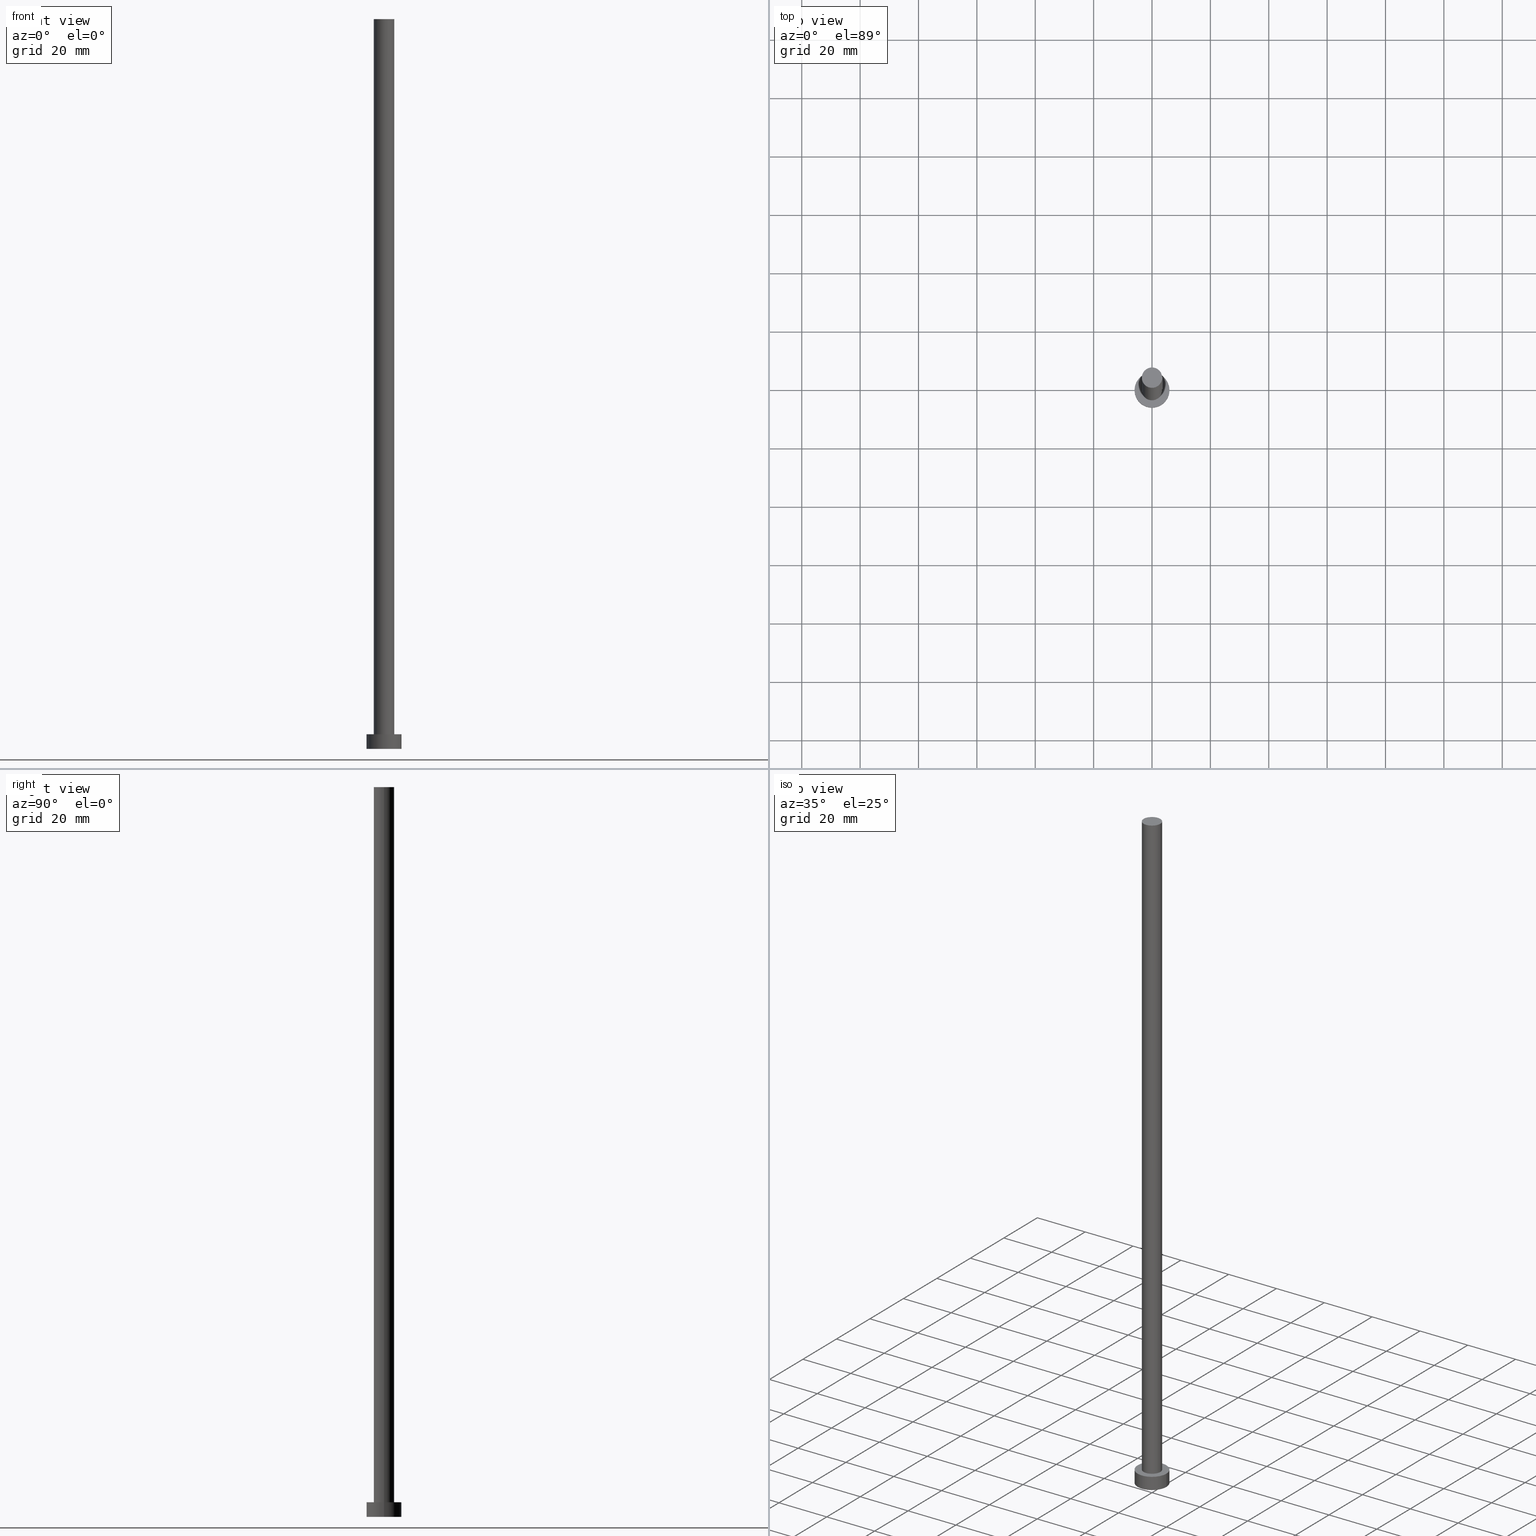
[diagram: canonical four-view strip — front | top / right | iso, engineering-drawing reading convention]
A machine part, canonical four-view strip (front | top / right | iso — engineering-drawing reading convention). The complete STEP part file that produces these views, byte-faithful:
ISO-10303-21;
HEADER;
FILE_DESCRIPTION (( 'STEP AP203' ),
    '1' );
FILE_NAME ('9ffb.STEP',
    '2023-02-13T13:35:58',
    ( '' ),
    ( '' ),
    'SwSTEP 2.0',
    'SolidWorks 2019',
    '' );
FILE_SCHEMA (( 'CONFIG_CONTROL_DESIGN' ));
ENDSEC;

DATA;
#1 = CARTESIAN_POINT ( 'NONE',  ( 0.000000000000000000, 0.000000000000000000, 5.000000000000000000 ) ) ;
#2 = AXIS2_PLACEMENT_3D ( 'NONE', #196, #21, #82 ) ;
#3 = CARTESIAN_POINT ( 'NONE',  ( 0.000000000000000000, 0.000000000000000000, 5.000000000000000000 ) ) ;
#4 = FACE_OUTER_BOUND ( 'NONE', #33, .T. ) ;
#5 = AXIS2_PLACEMENT_3D ( 'NONE', #92, #171, #212 ) ;
#6 = EDGE_CURVE ( 'NONE', #248, #48, #94, .T. ) ;
#7 = EDGE_CURVE ( 'NONE', #90, #169, #73, .T. ) ;
#8 = DIRECTION ( 'NONE',  ( 0.000000000000000000, 0.000000000000000000, 1.000000000000000000 ) ) ;
#9 = AXIS2_PLACEMENT_3D ( 'NONE', #44, #42, #236 ) ;
#10 = PRODUCT_DEFINITION ( 'NEZN�M�', '', #100, #41 ) ;
#11 = CYLINDRICAL_SURFACE ( 'NONE', #185, 3.500000000000000000 ) ;
#12 = ORIENTED_EDGE ( 'NONE', *, *, #66, .T. ) ;
#13 = APPROVAL_DATE_TIME ( #112, #176 ) ;
#14 = EDGE_CURVE ( 'NONE', #187, #169, #18, .T. ) ;
#15 = CYLINDRICAL_SURFACE ( 'NONE', #5, 3.500000000000000000 ) ;
#16 = ORIENTED_EDGE ( 'NONE', *, *, #14, .T. ) ;
#17 = CALENDAR_DATE ( 2023, 13, 2 ) ;
#18 = LINE ( 'NONE', #153, #36 ) ;
#19 = ORIENTED_EDGE ( 'NONE', *, *, #119, .T. ) ;
#20 = CARTESIAN_POINT ( 'NONE',  ( 6.000000000000000888, 7.347880794884120722E-16, 0.000000000000000000 ) ) ;
#21 = DIRECTION ( 'NONE',  ( 0.000000000000000000, 0.000000000000000000, 1.000000000000000000 ) ) ;
#22 = LOCAL_TIME ( 14, 35, 58.00000000000000000, #74 ) ;
#23 = LINE ( 'NONE', #105, #253 ) ;
#24 = AXIS2_PLACEMENT_3D ( 'NONE', #81, #34, #211 ) ;
#25 = APPROVAL_PERSON_ORGANIZATION ( #120, #216, #255 ) ;
#26 = APPROVAL_ROLE ( '' ) ;
#27 = ORIENTED_EDGE ( 'NONE', *, *, #145, .T. ) ;
#28 = CARTESIAN_POINT ( 'NONE',  ( 0.000000000000000000, 0.000000000000000000, 5.000000000000000000 ) ) ;
#29 = DIRECTION ( 'NONE',  ( 1.000000000000000000, 0.000000000000000000, 0.000000000000000000 ) ) ;
#30 = ORIENTED_EDGE ( 'NONE', *, *, #62, .T. ) ;
#31 = DATE_AND_TIME ( #225, #202 ) ;
#32 = DIRECTION ( 'NONE',  ( -0.000000000000000000, -0.000000000000000000, -1.000000000000000000 ) ) ;
#33 = EDGE_LOOP ( 'NONE', ( #150, #220 ) ) ;
#34 = DIRECTION ( 'NONE',  ( -0.000000000000000000, -0.000000000000000000, -1.000000000000000000 ) ) ;
#35 = COORDINATED_UNIVERSAL_TIME_OFFSET ( 1, 0, .AHEAD. ) ;
#36 = VECTOR ( 'NONE', #32, 1000.000000000000000 ) ;
#37 = PERSON_AND_ORGANIZATION ( #189, #95 ) ;
#38 =( LENGTH_UNIT ( ) NAMED_UNIT ( * ) SI_UNIT ( .MILLI., .METRE. ) );
#39 = APPROVAL ( #53, 'NEUR�EN�' ) ;
#40 = ADVANCED_FACE ( 'NONE', ( #223 ), #203, .T. ) ;
#41 = DESIGN_CONTEXT ( 'detailed design', #135, 'design' ) ;
#42 = DIRECTION ( 'NONE',  ( 0.000000000000000000, 0.000000000000000000, 1.000000000000000000 ) ) ;
#43 = PLANE ( 'NONE',  #129 ) ;
#44 = CARTESIAN_POINT ( 'NONE',  ( 0.000000000000000000, 0.000000000000000000, 5.000000000000000000 ) ) ;
#45 = CC_DESIGN_APPROVAL ( #39, ( #10 ) ) ;
#46 = CC_DESIGN_APPROVAL ( #176, ( #140 ) ) ;
#47 = ORIENTED_EDGE ( 'NONE', *, *, #7, .T. ) ;
#48 = VERTEX_POINT ( 'NONE', #72 ) ;
#49 = DATE_AND_TIME ( #69, #22 ) ;
#50 = EDGE_LOOP ( 'NONE', ( #88, #201 ) ) ;
#51 = DIRECTION ( 'NONE',  ( 0.000000000000000000, 0.000000000000000000, 1.000000000000000000 ) ) ;
#52 = CIRCLE ( 'NONE', #9, 6.000000000000000888 ) ;
#53 = APPROVAL_STATUS ( 'not_yet_approved' ) ;
#54 = ORIENTED_EDGE ( 'NONE', *, *, #6, .F. ) ;
#55 = EDGE_LOOP ( 'NONE', ( #219, #68 ) ) ;
#56 = COORDINATED_UNIVERSAL_TIME_OFFSET ( 1, 0, .AHEAD. ) ;
#57 = CARTESIAN_POINT ( 'NONE',  ( -3.500000000000000000, 0.000000000000000000, 250.0000000000000000 ) ) ;
#58 = PERSON_AND_ORGANIZATION ( #189, #95 ) ;
#59 = APPROVAL_DATE_TIME ( #31, #216 ) ;
#60 = CC_DESIGN_DATE_AND_TIME_ASSIGNMENT ( #49, #132, ( #140 ) ) ;
#61 = DIRECTION ( 'NONE',  ( 1.000000000000000000, 0.000000000000000000, 0.000000000000000000 ) ) ;
#62 = EDGE_CURVE ( 'NONE', #248, #79, #198, .T. ) ;
#63 = AXIS2_PLACEMENT_3D ( 'NONE', #114, #76, #191 ) ;
#64 = ADVANCED_BREP_SHAPE_REPRESENTATION ( '9ffb', ( #156, #63 ), #226 ) ;
#65 = DIRECTION ( 'NONE',  ( -0.000000000000000000, -0.000000000000000000, -1.000000000000000000 ) ) ;
#66 = EDGE_CURVE ( 'NONE', #190, #48, #165, .T. ) ;
#67 = VECTOR ( 'NONE', #115, 1000.000000000000000 ) ;
#68 = ORIENTED_EDGE ( 'NONE', *, *, #66, .F. ) ;
#69 = CALENDAR_DATE ( 2023, 13, 2 ) ;
#70 = CARTESIAN_POINT ( 'NONE',  ( -6.000000000000000888, 0.000000000000000000, 0.000000000000000000 ) ) ;
#71 = DIRECTION ( 'NONE',  ( 1.000000000000000000, 0.000000000000000000, 0.000000000000000000 ) ) ;
#72 = CARTESIAN_POINT ( 'NONE',  ( -3.500000000000000000, 0.000000000000000000, 5.000000000000000000 ) ) ;
#73 = CIRCLE ( 'NONE', #134, 6.000000000000000888 ) ;
#74 = COORDINATED_UNIVERSAL_TIME_OFFSET ( 1, 0, .AHEAD. ) ;
#75 = APPROVAL_ROLE ( '' ) ;
#76 = DIRECTION ( 'NONE',  ( 0.000000000000000000, 0.000000000000000000, 1.000000000000000000 ) ) ;
#77 = APPROVAL_PERSON_ORGANIZATION ( #122, #39, #75 ) ;
#78 =( NAMED_UNIT ( * ) PLANE_ANGLE_UNIT ( ) SI_UNIT ( $, .RADIAN. ) );
#79 = VERTEX_POINT ( 'NONE', #80 ) ;
#80 = CARTESIAN_POINT ( 'NONE',  ( 3.500000000000000000, 4.286263797015736595E-16, 250.0000000000000000 ) ) ;
#81 = CARTESIAN_POINT ( 'NONE',  ( 0.000000000000000000, 0.000000000000000000, 5.000000000000000000 ) ) ;
#82 = DIRECTION ( 'NONE',  ( 1.000000000000000000, 0.000000000000000000, 0.000000000000000000 ) ) ;
#83 = PRODUCT_RELATED_PRODUCT_CATEGORY ( 'detail', '', ( #240 ) ) ;
#84 = CIRCLE ( 'NONE', #108, 6.000000000000000888 ) ;
#85 = ADVANCED_FACE ( 'NONE', ( #160 ), #161, .T. ) ;
#86 = VECTOR ( 'NONE', #175, 1000.000000000000000 ) ;
#87 = PERSON_AND_ORGANIZATION ( #189, #95 ) ;
#88 = ORIENTED_EDGE ( 'NONE', *, *, #208, .T. ) ;
#89 = SHAPE_DEFINITION_REPRESENTATION ( #98, #64 ) ;
#90 = VERTEX_POINT ( 'NONE', #70 ) ;
#91 = EDGE_LOOP ( 'NONE', ( #30, #133 ) ) ;
#92 = CARTESIAN_POINT ( 'NONE',  ( 0.000000000000000000, 0.000000000000000000, 250.0000000000000000 ) ) ;
#93 = CALENDAR_DATE ( 2023, 13, 2 ) ;
#94 = LINE ( 'NONE', #254, #67 ) ;
#95 = ORGANIZATION ( 'NEUR�EN�', 'NEUR�EN�', '' ) ;
#96 = CC_DESIGN_SECURITY_CLASSIFICATION ( #140, ( #100 ) ) ;
#97 = COORDINATED_UNIVERSAL_TIME_OFFSET ( 1, 0, .AHEAD. ) ;
#98 = PRODUCT_DEFINITION_SHAPE ( 'NONE', 'NONE',  #10 ) ;
#99 = ORIENTED_EDGE ( 'NONE', *, *, #158, .F. ) ;
#100 = PRODUCT_DEFINITION_FORMATION_WITH_SPECIFIED_SOURCE ( 'LIBOVOLN�', '', #240, .NOT_KNOWN. ) ;
#101 = DIRECTION ( 'NONE',  ( 1.000000000000000000, 0.000000000000000000, -0.000000000000000000 ) ) ;
#102 = FACE_OUTER_BOUND ( 'NONE', #50, .T. ) ;
#103 = CIRCLE ( 'NONE', #148, 3.500000000000000000 ) ;
#104 = CC_DESIGN_PERSON_AND_ORGANIZATION_ASSIGNMENT ( #37, #167, ( #100 ) ) ;
#105 = CARTESIAN_POINT ( 'NONE',  ( 3.500000000000000000, 4.286263797015736595E-16, 250.0000000000000000 ) ) ;
#106 = DIRECTION ( 'NONE',  ( 1.000000000000000000, 0.000000000000000000, 0.000000000000000000 ) ) ;
#107 = CARTESIAN_POINT ( 'NONE',  ( 0.000000000000000000, 0.000000000000000000, 0.000000000000000000 ) ) ;
#108 = AXIS2_PLACEMENT_3D ( 'NONE', #107, #8, #182 ) ;
#109 = EDGE_LOOP ( 'NONE', ( #244, #116, #184, #47 ) ) ;
#110 = CLOSED_SHELL ( 'NONE', ( #237, #40, #210, #136, #251, #229, #85 ) ) ;
#111 = ORIENTED_EDGE ( 'NONE', *, *, #6, .T. ) ;
#112 = DATE_AND_TIME ( #138, #149 ) ;
#113 = CC_DESIGN_PERSON_AND_ORGANIZATION_ASSIGNMENT ( #154, #221, ( #100 ) ) ;
#114 = CARTESIAN_POINT ( 'NONE',  ( 0.000000000000000000, 0.000000000000000000, 0.000000000000000000 ) ) ;
#115 = DIRECTION ( 'NONE',  ( -0.000000000000000000, -0.000000000000000000, -1.000000000000000000 ) ) ;
#116 = ORIENTED_EDGE ( 'NONE', *, *, #208, .F. ) ;
#117 = APPLICATION_PROTOCOL_DEFINITION ( 'international standard', 'config_control_design', 1994, #186 ) ;
#118 = AXIS2_PLACEMENT_3D ( 'NONE', #215, #233, #106 ) ;
#119 = EDGE_CURVE ( 'NONE', #169, #90, #84, .T. ) ;
#120 = PERSON_AND_ORGANIZATION ( #189, #95 ) ;
#121 = CARTESIAN_POINT ( 'NONE',  ( -6.000000000000000888, 0.000000000000000000, 5.000000000000000000 ) ) ;
#122 = PERSON_AND_ORGANIZATION ( #189, #95 ) ;
#123 = CARTESIAN_POINT ( 'NONE',  ( 6.000000000000000888, 7.347880794884120722E-16, 5.000000000000000000 ) ) ;
#124 = DIRECTION ( 'NONE',  ( 0.000000000000000000, 0.000000000000000000, 1.000000000000000000 ) ) ;
#125 = FACE_OUTER_BOUND ( 'NONE', #109, .T. ) ;
#126 = DIRECTION ( 'NONE',  ( 1.000000000000000000, 0.000000000000000000, -0.000000000000000000 ) ) ;
#127 = CARTESIAN_POINT ( 'NONE',  ( 0.000000000000000000, 0.000000000000000000, 5.000000000000000000 ) ) ;
#128 = AXIS2_PLACEMENT_3D ( 'NONE', #1, #230, #195 ) ;
#129 = AXIS2_PLACEMENT_3D ( 'NONE', #127, #197, #181 ) ;
#130 = EDGE_LOOP ( 'NONE', ( #199, #166, #111, #177 ) ) ;
#131 = CC_DESIGN_PERSON_AND_ORGANIZATION_ASSIGNMENT ( #58, #228, ( #10 ) ) ;
#132 = DATE_TIME_ROLE ( 'classification_date' ) ;
#133 = ORIENTED_EDGE ( 'NONE', *, *, #235, .T. ) ;
#134 = AXIS2_PLACEMENT_3D ( 'NONE', #245, #51, #71 ) ;
#135 = APPLICATION_CONTEXT ( 'configuration controlled 3d designs of mechanical parts and assemblies' ) ;
#136 = ADVANCED_FACE ( 'NONE', ( #241, #102 ), #43, .T. ) ;
#137 = DIRECTION ( 'NONE',  ( -0.000000000000000000, -0.000000000000000000, -1.000000000000000000 ) ) ;
#138 = CALENDAR_DATE ( 2023, 13, 2 ) ;
#139 = APPROVAL_DATE_TIME ( #194, #39 ) ;
#140 = SECURITY_CLASSIFICATION ( '', '', #252 ) ;
#141 = DATE_AND_TIME ( #93, #192 ) ;
#142 = AXIS2_PLACEMENT_3D ( 'NONE', #3, #232, #61 ) ;
#143 = UNCERTAINTY_MEASURE_WITH_UNIT (LENGTH_MEASURE( 1.000000000000000082E-05 ), #38, 'distance_accuracy_value', 'NONE');
#144 = CARTESIAN_POINT ( 'NONE',  ( 0.000000000000000000, 0.000000000000000000, 250.0000000000000000 ) ) ;
#145 = EDGE_CURVE ( 'NONE', #79, #190, #23, .T. ) ;
#146 = CYLINDRICAL_SURFACE ( 'NONE', #24, 6.000000000000000888 ) ;
#147 = CIRCLE ( 'NONE', #128, 6.000000000000000888 ) ;
#148 = AXIS2_PLACEMENT_3D ( 'NONE', #247, #224, #29 ) ;
#149 = LOCAL_TIME ( 14, 35, 58.00000000000000000, #56 ) ;
#150 = ORIENTED_EDGE ( 'NONE', *, *, #7, .F. ) ;
#151 = EDGE_CURVE ( 'NONE', #205, #90, #173, .T. ) ;
#152 = APPLICATION_PROTOCOL_DEFINITION ( 'international standard', 'config_control_design', 1994, #135 ) ;
#153 = CARTESIAN_POINT ( 'NONE',  ( 6.000000000000000888, 7.347880794884120722E-16, 5.000000000000000000 ) ) ;
#154 = PERSON_AND_ORGANIZATION ( #189, #95 ) ;
#155 = APPROVAL_STATUS ( 'not_yet_approved' ) ;
#156 = MANIFOLD_SOLID_BREP ( 'P�idat vysunut�m3', #110 ) ;
#157 = PERSON_AND_ORGANIZATION_ROLE ( 'design_owner' ) ;
#158 = EDGE_CURVE ( 'NONE', #187, #205, #147, .T. ) ;
#159 = APPROVAL_PERSON_ORGANIZATION ( #200, #176, #26 ) ;
#160 = FACE_OUTER_BOUND ( 'NONE', #91, .T. ) ;
#161 = PLANE ( 'NONE',  #207 ) ;
#162 = CARTESIAN_POINT ( 'NONE',  ( 3.500000000000000000, 4.286263797015736595E-16, 5.000000000000000000 ) ) ;
#163 = AXIS2_PLACEMENT_3D ( 'NONE', #179, #124, #101 ) ;
#164 = CC_DESIGN_DATE_AND_TIME_ASSIGNMENT ( #141, #209, ( #10 ) ) ;
#165 = CIRCLE ( 'NONE', #2, 3.500000000000000000 ) ;
#166 = ORIENTED_EDGE ( 'NONE', *, *, #62, .F. ) ;
#167 = PERSON_AND_ORGANIZATION_ROLE ( 'creator' ) ;
#168 = DIRECTION ( 'NONE',  ( -1.000000000000000000, 0.000000000000000000, 0.000000000000000000 ) ) ;
#169 = VERTEX_POINT ( 'NONE', #20 ) ;
#170 = DIRECTION ( 'NONE',  ( -0.000000000000000000, -0.000000000000000000, -1.000000000000000000 ) ) ;
#171 = DIRECTION ( 'NONE',  ( -0.000000000000000000, -0.000000000000000000, -1.000000000000000000 ) ) ;
#172 = APPROVAL_STATUS ( 'not_yet_approved' ) ;
#173 = LINE ( 'NONE', #121, #86 ) ;
#174 = COORDINATED_UNIVERSAL_TIME_OFFSET ( 1, 0, .AHEAD. ) ;
#175 = DIRECTION ( 'NONE',  ( -0.000000000000000000, -0.000000000000000000, -1.000000000000000000 ) ) ;
#176 = APPROVAL ( #155, 'NEUR�EN�' ) ;
#177 = ORIENTED_EDGE ( 'NONE', *, *, #183, .T. ) ;
#178 = FACE_OUTER_BOUND ( 'NONE', #130, .T. ) ;
#179 = CARTESIAN_POINT ( 'NONE',  ( 0.000000000000000000, 0.000000000000000000, 0.000000000000000000 ) ) ;
#180 = CIRCLE ( 'NONE', #142, 3.500000000000000000 ) ;
#181 = DIRECTION ( 'NONE',  ( 1.000000000000000000, 0.000000000000000000, -0.000000000000000000 ) ) ;
#182 = DIRECTION ( 'NONE',  ( 1.000000000000000000, 0.000000000000000000, 0.000000000000000000 ) ) ;
#183 = EDGE_CURVE ( 'NONE', #48, #190, #180, .T. ) ;
#184 = ORIENTED_EDGE ( 'NONE', *, *, #151, .T. ) ;
#185 = AXIS2_PLACEMENT_3D ( 'NONE', #250, #137, #168 ) ;
#186 = APPLICATION_CONTEXT ( 'configuration controlled 3d designs of mechanical parts and assemblies' ) ;
#187 = VERTEX_POINT ( 'NONE', #123 ) ;
#188 = FACE_OUTER_BOUND ( 'NONE', #222, .T. ) ;
#189 = PERSON ( 'NEUR�EN�', 'NEUR�EN�', 'NEUR�EN�', ('NEUR�EN�'), ('NEUR�EN�'), ('NEUR�EN�') ) ;
#190 = VERTEX_POINT ( 'NONE', #162 ) ;
#191 = DIRECTION ( 'NONE',  ( 1.000000000000000000, 0.000000000000000000, 0.000000000000000000 ) ) ;
#192 = LOCAL_TIME ( 14, 35, 58.00000000000000000, #97 ) ;
#193 = PERSON_AND_ORGANIZATION ( #189, #95 ) ;
#194 = DATE_AND_TIME ( #17, #234 ) ;
#195 = DIRECTION ( 'NONE',  ( 1.000000000000000000, 0.000000000000000000, 0.000000000000000000 ) ) ;
#196 = CARTESIAN_POINT ( 'NONE',  ( 0.000000000000000000, 0.000000000000000000, 5.000000000000000000 ) ) ;
#197 = DIRECTION ( 'NONE',  ( 0.000000000000000000, 0.000000000000000000, 1.000000000000000000 ) ) ;
#198 = CIRCLE ( 'NONE', #118, 3.500000000000000000 ) ;
#199 = ORIENTED_EDGE ( 'NONE', *, *, #145, .F. ) ;
#200 = PERSON_AND_ORGANIZATION ( #189, #95 ) ;
#201 = ORIENTED_EDGE ( 'NONE', *, *, #158, .T. ) ;
#202 = LOCAL_TIME ( 14, 35, 58.00000000000000000, #35 ) ;
#203 = CYLINDRICAL_SURFACE ( 'NONE', #213, 6.000000000000000888 ) ;
#204 = ORIENTED_EDGE ( 'NONE', *, *, #151, .F. ) ;
#205 = VERTEX_POINT ( 'NONE', #239 ) ;
#206 = MECHANICAL_CONTEXT ( 'NONE', #186, 'mechanical' ) ;
#207 = AXIS2_PLACEMENT_3D ( 'NONE', #144, #214, #126 ) ;
#208 = EDGE_CURVE ( 'NONE', #205, #187, #52, .T. ) ;
#209 = DATE_TIME_ROLE ( 'creation_date' ) ;
#210 = ADVANCED_FACE ( 'NONE', ( #125 ), #146, .T. ) ;
#211 = DIRECTION ( 'NONE',  ( -1.000000000000000000, 0.000000000000000000, 0.000000000000000000 ) ) ;
#212 = DIRECTION ( 'NONE',  ( -1.000000000000000000, 0.000000000000000000, 0.000000000000000000 ) ) ;
#213 = AXIS2_PLACEMENT_3D ( 'NONE', #28, #170, #249 ) ;
#214 = DIRECTION ( 'NONE',  ( 0.000000000000000000, 0.000000000000000000, 1.000000000000000000 ) ) ;
#215 = CARTESIAN_POINT ( 'NONE',  ( 0.000000000000000000, 0.000000000000000000, 250.0000000000000000 ) ) ;
#216 = APPROVAL ( #172, 'NEUR�EN�' ) ;
#217 = CC_DESIGN_PERSON_AND_ORGANIZATION_ASSIGNMENT ( #87, #157, ( #240 ) ) ;
#218 = EDGE_LOOP ( 'NONE', ( #99, #16, #19, #204 ) ) ;
#219 = ORIENTED_EDGE ( 'NONE', *, *, #183, .F. ) ;
#220 = ORIENTED_EDGE ( 'NONE', *, *, #119, .F. ) ;
#221 = PERSON_AND_ORGANIZATION_ROLE ( 'design_supplier' ) ;
#222 = EDGE_LOOP ( 'NONE', ( #242, #27, #12, #54 ) ) ;
#223 = FACE_OUTER_BOUND ( 'NONE', #218, .T. ) ;
#224 = DIRECTION ( 'NONE',  ( 0.000000000000000000, 0.000000000000000000, 1.000000000000000000 ) ) ;
#225 = CALENDAR_DATE ( 2023, 13, 2 ) ;
#226 =( GEOMETRIC_REPRESENTATION_CONTEXT ( 3 ) GLOBAL_UNCERTAINTY_ASSIGNED_CONTEXT ( ( #143 ) ) GLOBAL_UNIT_ASSIGNED_CONTEXT ( ( #38, #78, #227 ) ) REPRESENTATION_CONTEXT ( 'NONE', 'WORKASPACE' ) );
#227 =( NAMED_UNIT ( * ) SI_UNIT ( $, .STERADIAN. ) SOLID_ANGLE_UNIT ( ) );
#228 = PERSON_AND_ORGANIZATION_ROLE ( 'creator' ) ;
#229 = ADVANCED_FACE ( 'NONE', ( #178 ), #11, .T. ) ;
#230 = DIRECTION ( 'NONE',  ( 0.000000000000000000, 0.000000000000000000, 1.000000000000000000 ) ) ;
#231 = PLANE ( 'NONE',  #163 ) ;
#232 = DIRECTION ( 'NONE',  ( 0.000000000000000000, 0.000000000000000000, 1.000000000000000000 ) ) ;
#233 = DIRECTION ( 'NONE',  ( 0.000000000000000000, 0.000000000000000000, 1.000000000000000000 ) ) ;
#234 = LOCAL_TIME ( 14, 35, 58.00000000000000000, #174 ) ;
#235 = EDGE_CURVE ( 'NONE', #79, #248, #103, .T. ) ;
#236 = DIRECTION ( 'NONE',  ( 1.000000000000000000, 0.000000000000000000, 0.000000000000000000 ) ) ;
#237 = ADVANCED_FACE ( 'NONE', ( #188 ), #15, .T. ) ;
#238 = CC_DESIGN_APPROVAL ( #216, ( #100 ) ) ;
#239 = CARTESIAN_POINT ( 'NONE',  ( -6.000000000000000888, 0.000000000000000000, 5.000000000000000000 ) ) ;
#240 = PRODUCT ( '9ffb', '9ffb', '', ( #206 ) ) ;
#241 = FACE_BOUND ( 'NONE', #55, .T. ) ;
#242 = ORIENTED_EDGE ( 'NONE', *, *, #235, .F. ) ;
#243 = PERSON_AND_ORGANIZATION_ROLE ( 'classification_officer' ) ;
#244 = ORIENTED_EDGE ( 'NONE', *, *, #14, .F. ) ;
#245 = CARTESIAN_POINT ( 'NONE',  ( 0.000000000000000000, 0.000000000000000000, 0.000000000000000000 ) ) ;
#246 = CC_DESIGN_PERSON_AND_ORGANIZATION_ASSIGNMENT ( #193, #243, ( #140 ) ) ;
#247 = CARTESIAN_POINT ( 'NONE',  ( 0.000000000000000000, 0.000000000000000000, 250.0000000000000000 ) ) ;
#248 = VERTEX_POINT ( 'NONE', #57 ) ;
#249 = DIRECTION ( 'NONE',  ( -1.000000000000000000, 0.000000000000000000, 0.000000000000000000 ) ) ;
#250 = CARTESIAN_POINT ( 'NONE',  ( 0.000000000000000000, 0.000000000000000000, 250.0000000000000000 ) ) ;
#251 = ADVANCED_FACE ( 'NONE', ( #4 ), #231, .F. ) ;
#252 = SECURITY_CLASSIFICATION_LEVEL ( 'unclassified' ) ;
#253 = VECTOR ( 'NONE', #65, 1000.000000000000000 ) ;
#254 = CARTESIAN_POINT ( 'NONE',  ( -3.500000000000000000, 0.000000000000000000, 250.0000000000000000 ) ) ;
#255 = APPROVAL_ROLE ( '' ) ;
ENDSEC;
END-ISO-10303-21;
